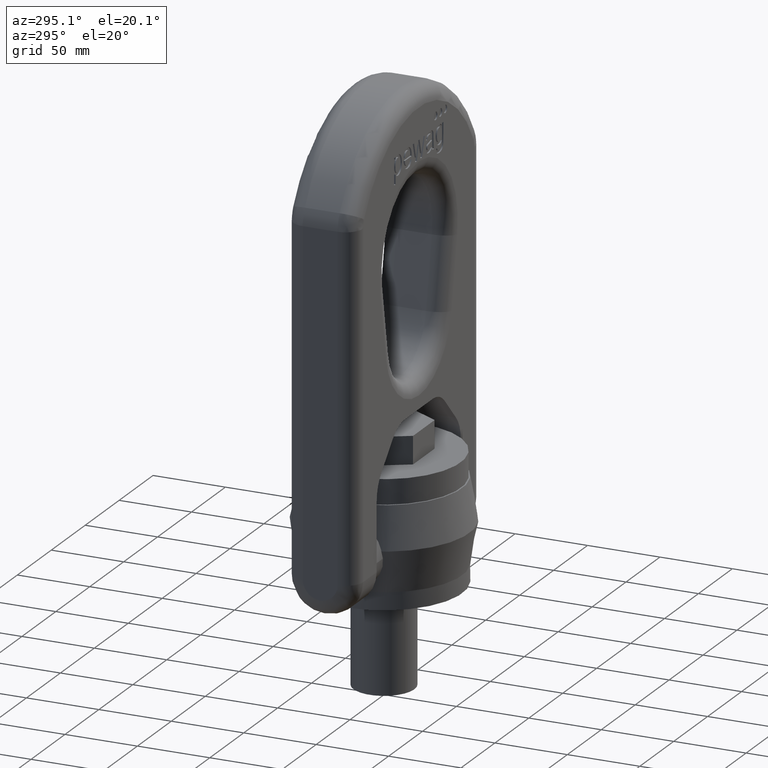
[diagram: clean part render]
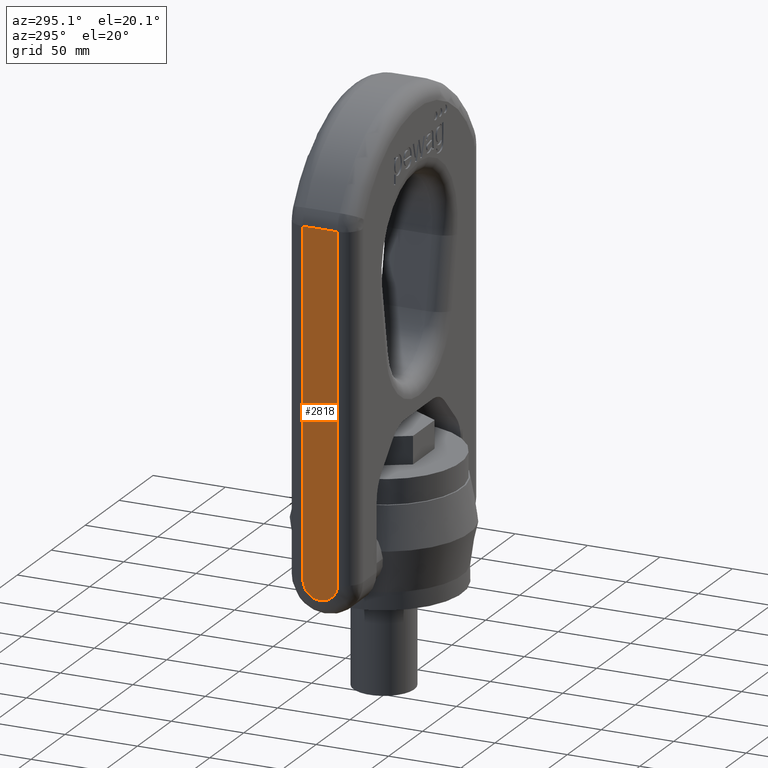
[diagram: same view with one face highlighted and labeled with its STEP entity id]
A machine part, auxiliary view. The second image highlights one B-rep face of the part: STEP entity #2818.
In plain terms, the highlighted planar face has unit normal (1, 0, -0).
Its self-contained STEP definition (entity closure, byte-faithful):
#1864=LINE('',#7742,#2172);
#1865=LINE('',#7745,#2173);
#1866=LINE('',#7749,#2174);
#2172=VECTOR('',#6345,1.);
#2173=VECTOR('',#6346,1.);
#2174=VECTOR('',#6349,1.);
#2458=FACE_OUTER_BOUND('',#3196,.T.);
#2689=PLANE('',#5901);
#2818=ADVANCED_FACE('',(#2458),#2689,.F.);
#3196=EDGE_LOOP('',(#3731,#3732,#3733,#3734));
#3731=ORIENTED_EDGE('',*,*,#5360,.T.);
#3732=ORIENTED_EDGE('',*,*,#5361,.T.);
#3733=ORIENTED_EDGE('',*,*,#5362,.T.);
#3734=ORIENTED_EDGE('',*,*,#5363,.T.);
#4919=VERTEX_POINT('',#7743);
#4920=VERTEX_POINT('',#7744);
#4921=VERTEX_POINT('',#7746);
#4922=VERTEX_POINT('',#7748);
#5360=EDGE_CURVE('',#4919,#4920,#1864,.T.);
#5361=EDGE_CURVE('',#4920,#4921,#1865,.T.);
#5362=EDGE_CURVE('',#4921,#4922,#5789,.T.);
#5363=EDGE_CURVE('',#4922,#4919,#1866,.T.);
#5789=CIRCLE('',#5900,11.9999999999999);
#5900=AXIS2_PLACEMENT_3D('',#7747,#6347,#6348);
#5901=AXIS2_PLACEMENT_3D('',#7750,#6350,#6351);
#6345=DIRECTION('',(0.,1.,0.));
#6346=DIRECTION('',(-1.04738021191052E-16,2.45391833600033E-31,-1.));
#6347=DIRECTION('',(-1.,0.,1.04738021191052E-16));
#6348=DIRECTION('',(0.,0.,-1.));
#6349=DIRECTION('',(1.04738021191052E-16,0.,1.));
#6350=DIRECTION('',(1.,0.,-1.04738021191052E-16));
#6351=DIRECTION('',(-1.11022302462516E-16,0.,-1.));
#7742=CARTESIAN_POINT('',(-94.,-24.,265.333333333333));
#7743=CARTESIAN_POINT('',(-94.,-12.,265.333333333333));
#7744=CARTESIAN_POINT('',(-94.,12.0000000000002,265.333333333333));
#7745=CARTESIAN_POINT('',(-94.,12.0000000000002,30.0000000000001));
#7746=CARTESIAN_POINT('',(-94.,12.,30.0000000000001));
#7747=CARTESIAN_POINT('',(-94.,9.52252461280886E-14,30.0000000000001));
#7748=CARTESIAN_POINT('',(-94.,-12.,30.0000000000001));
#7749=CARTESIAN_POINT('',(-94.,-12.,265.333333333333));
#7750=CARTESIAN_POINT('',(-94.,-24.,271.));